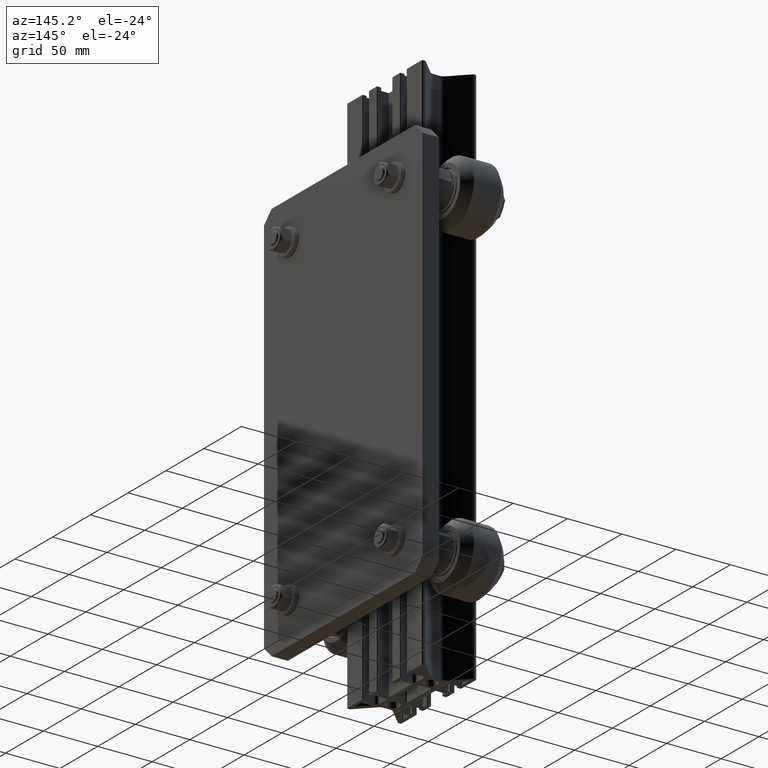
[diagram: clean part render]
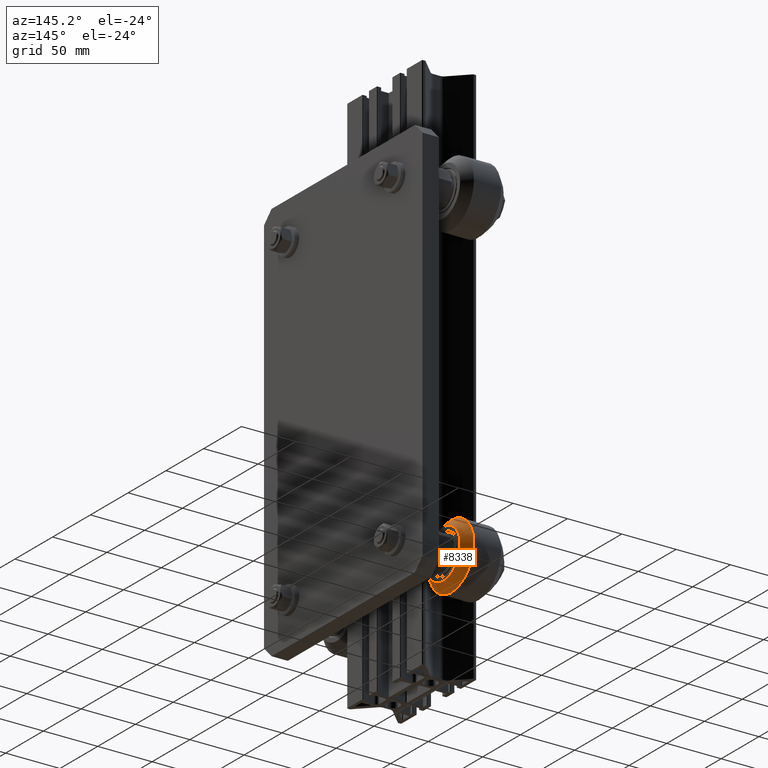
[diagram: same view with one face highlighted and labeled with its STEP entity id]
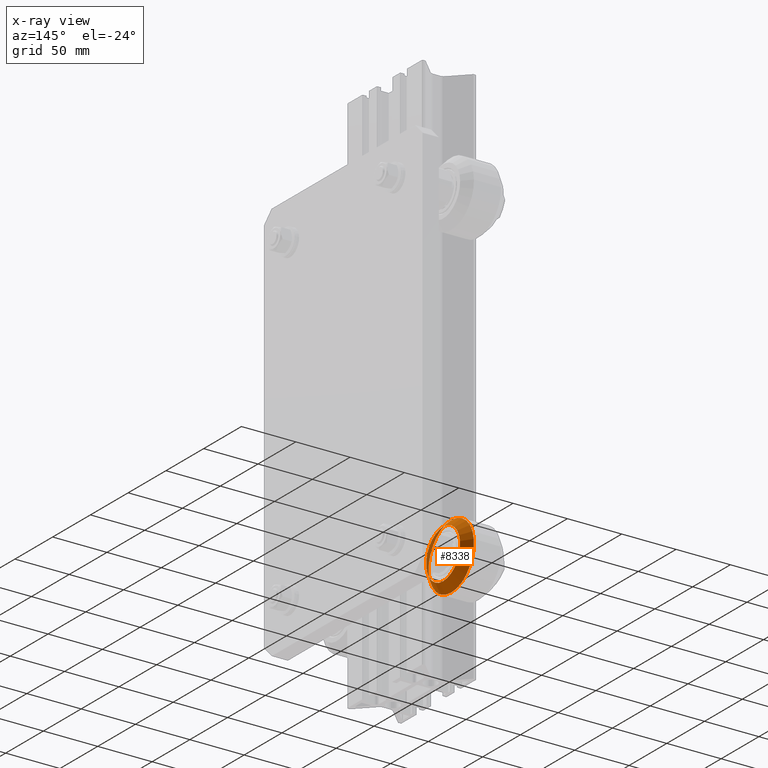
[diagram: x-ray of the same camera — body ghosted, the highlighted face saturated]
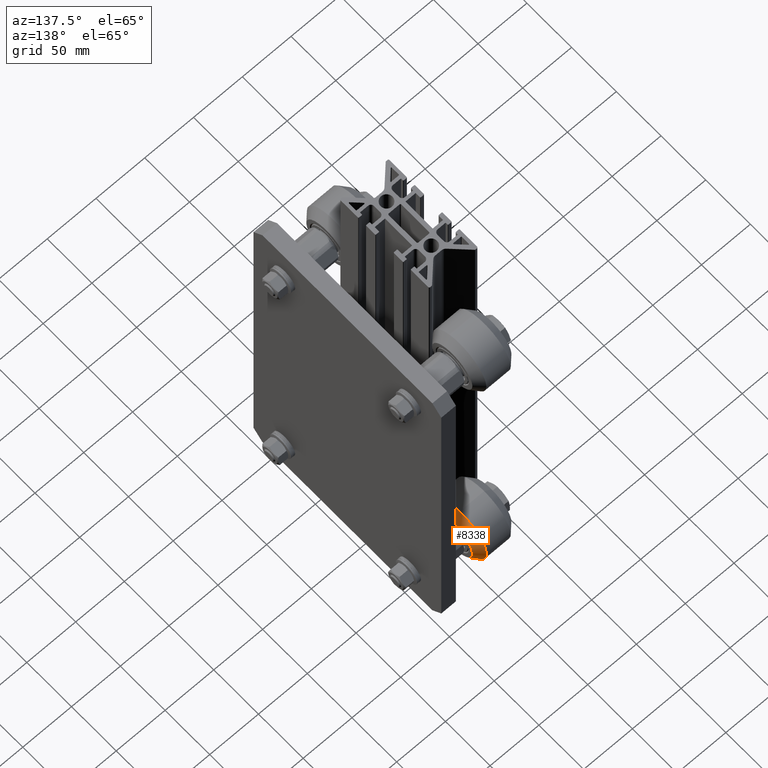
[diagram: same view with one face highlighted and labeled with its STEP entity id]
A machine part, auxiliary view. The second image highlights one B-rep face of the part: STEP entity #8338.
The next image is the same camera in x-ray: the body ghosted, the highlighted face saturated — about 9% of this face is hidden behind the body in this view.
A second angle (auxiliary view) of the same face is appended — the face is thin or edge-on in the first view.
In plain terms, the highlighted conical surface has half-angle 45 deg.
Its self-contained STEP definition (entity closure, byte-faithful):
#256=CONICAL_SURFACE('',#9235,26.25,0.785398163397448);
#754=FACE_OUTER_BOUND('',#1221,.T.);
#1221=EDGE_LOOP('',(#6299,#6300,#6301,#6302));
#1695=CIRCLE('',#9228,22.5);
#1698=CIRCLE('',#9234,30.);
#2273=LINE('',#13515,#2896);
#2896=VECTOR('',#10801,26.25);
#3528=VERTEX_POINT('',#13500);
#3531=VERTEX_POINT('',#13511);
#4540=EDGE_CURVE('',#3528,#3528,#1695,.T.);
#4545=EDGE_CURVE('',#3531,#3531,#1698,.T.);
#4547=EDGE_CURVE('',#3528,#3531,#2273,.T.);
#6299=ORIENTED_EDGE('',*,*,#4540,.F.);
#6300=ORIENTED_EDGE('',*,*,#4547,.T.);
#6301=ORIENTED_EDGE('',*,*,#4545,.T.);
#6302=ORIENTED_EDGE('',*,*,#4547,.F.);
#8338=ADVANCED_FACE('',(#754),#256,.T.);
#9228=AXIS2_PLACEMENT_3D('',#13501,#10782,#10783);
#9234=AXIS2_PLACEMENT_3D('',#13512,#10796,#10797);
#9235=AXIS2_PLACEMENT_3D('',#13514,#10799,#10800);
#10782=DIRECTION('center_axis',(1.,0.,0.));
#10783=DIRECTION('ref_axis',(0.,1.,0.));
#10796=DIRECTION('center_axis',(1.,0.,0.));
#10797=DIRECTION('ref_axis',(0.,1.,0.));
#10799=DIRECTION('center_axis',(-1.,0.,0.));
#10800=DIRECTION('ref_axis',(0.,1.,0.));
#10801=DIRECTION('',(-0.707106781186548,-0.707106781186548,-8.65956056235493E-17));
#13500=CARTESIAN_POINT('',(20.,-22.5,-2.75545529808154E-15));
#13501=CARTESIAN_POINT('Origin',(20.,0.,0.));
#13511=CARTESIAN_POINT('',(12.5,-30.,-3.67394039744206E-15));
#13512=CARTESIAN_POINT('Origin',(12.5,0.,0.));
#13514=CARTESIAN_POINT('Origin',(16.25,0.,0.));
#13515=CARTESIAN_POINT('',(16.25,-26.25,-3.2146978477618E-15));